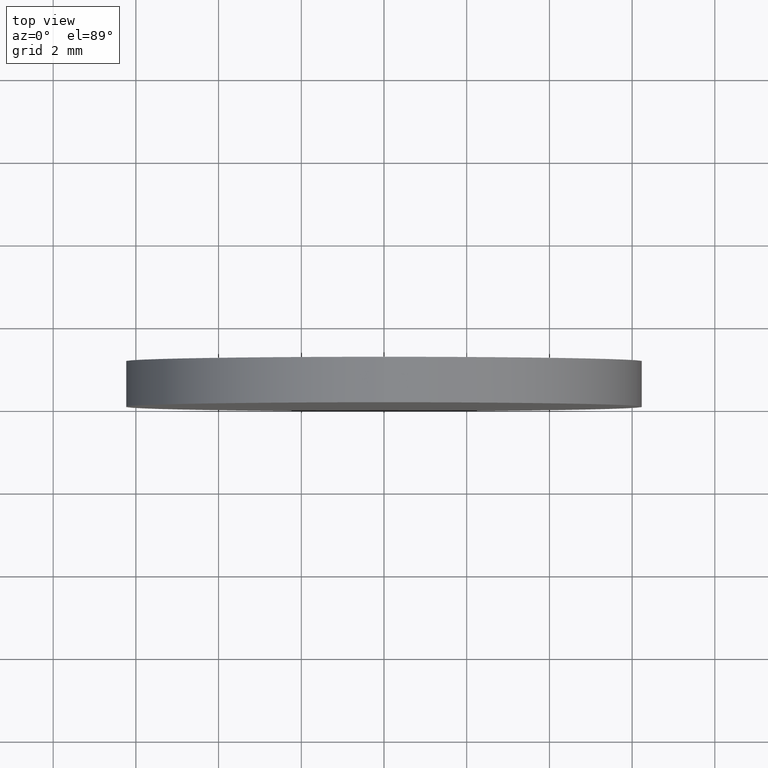
[diagram: clean part render]
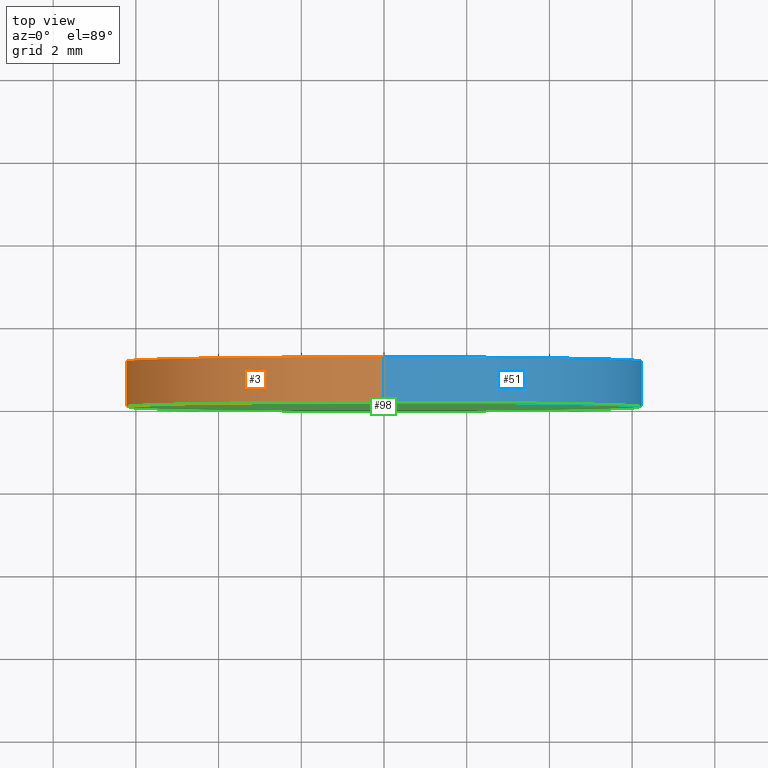
[diagram: same view with three faces highlighted in distinct colors, each labeled with its STEP entity id]
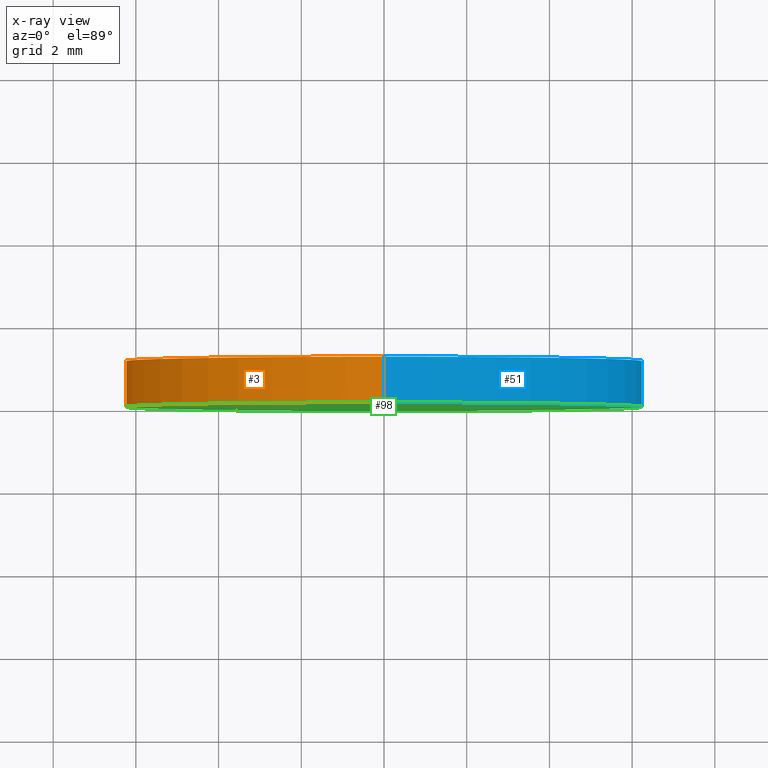
[diagram: x-ray of the same camera — body ghosted, the three highlighted faces saturated]
A machine part, top view with three faces highlighted in distinct colors.
The next image is the same camera in x-ray (body ghosted, the three faces saturated) — at least one of them is partly hidden behind the body in this view.
Their STEP definitions:

[orange] entity #3 — the highlighted cylindrical surface (partial cylindrical patch) has radius 6.25 mm, axis along (-0, -1, -0).
#2 = CIRCLE ( 'NONE', #123, 6.250000000000000000 ) ;
#3 = ADVANCED_FACE ( 'NONE', ( #134 ), #137, .T. ) ;
#8 = CARTESIAN_POINT ( 'NONE',  ( 0.0000000000000000000, 0.0000000000000000000, 0.0000000000000000000 ) ) ;
#9 = ORIENTED_EDGE ( 'NONE', *, *, #71, .F. ) ;
#10 = ORIENTED_EDGE ( 'NONE', *, *, #95, .T. ) ;
#13 = CARTESIAN_POINT ( 'NONE',  ( 0.0000000000000000000, 1.100000000000000100, 0.0000000000000000000 ) ) ;
#15 = CARTESIAN_POINT ( 'NONE',  ( 7.654042494670957600E-016, 0.0000000000000000000, 6.250000000000000000 ) ) ;
#21 = AXIS2_PLACEMENT_3D ( 'NONE', #13, #128, #139 ) ;
#22 = EDGE_LOOP ( 'NONE', ( #121, #9, #37, #10 ) ) ;
#32 = CARTESIAN_POINT ( 'NONE',  ( 0.0000000000000000000, 0.0000000000000000000, -6.250000000000000000 ) ) ;
#34 = CARTESIAN_POINT ( 'NONE',  ( 0.0000000000000000000, 1.100000000000000100, -6.250000000000000000 ) ) ;
#36 = LINE ( 'NONE', #109, #64 ) ;
#37 = ORIENTED_EDGE ( 'NONE', *, *, #74, .T. ) ;
#40 = AXIS2_PLACEMENT_3D ( 'NONE', #8, #140, #93 ) ;
#44 = DIRECTION ( 'NONE',  ( 0.0000000000000000000, 1.000000000000000000, 0.0000000000000000000 ) ) ;
#54 = DIRECTION ( 'NONE',  ( -0.0000000000000000000, -1.000000000000000000, -0.0000000000000000000 ) ) ;
#64 = VECTOR ( 'NONE', #120, 1000.000000000000000 ) ;
#69 = CARTESIAN_POINT ( 'NONE',  ( 7.654042494670957600E-016, 1.100000000000000100, 6.250000000000000000 ) ) ;
#71 = EDGE_CURVE ( 'NONE', #104, #84, #2, .T. ) ;
#74 = EDGE_CURVE ( 'NONE', #104, #82, #125, .T. ) ;
#82 = VERTEX_POINT ( 'NONE', #32 ) ;
#84 = VERTEX_POINT ( 'NONE', #69 ) ;
#85 = VECTOR ( 'NONE', #54, 1000.000000000000000 ) ;
#90 = DIRECTION ( 'NONE',  ( 0.0000000000000000000, 0.0000000000000000000, 1.000000000000000000 ) ) ;
#93 = DIRECTION ( 'NONE',  ( 0.0000000000000000000, 0.0000000000000000000, 1.000000000000000000 ) ) ;
#95 = EDGE_CURVE ( 'NONE', #82, #106, #97, .T. ) ;
#97 = CIRCLE ( 'NONE', #40, 6.250000000000000000 ) ;
#99 = EDGE_CURVE ( 'NONE', #84, #106, #36, .T. ) ;
#104 = VERTEX_POINT ( 'NONE', #34 ) ;
#105 = CARTESIAN_POINT ( 'NONE',  ( 0.0000000000000000000, 1.100000000000000100, 0.0000000000000000000 ) ) ;
#106 = VERTEX_POINT ( 'NONE', #15 ) ;
#109 = CARTESIAN_POINT ( 'NONE',  ( 7.654042494670957600E-016, 1.100000000000000100, 6.250000000000000000 ) ) ;
#118 = CARTESIAN_POINT ( 'NONE',  ( 0.0000000000000000000, 1.100000000000000100, -6.250000000000000000 ) ) ;
#120 = DIRECTION ( 'NONE',  ( -0.0000000000000000000, -1.000000000000000000, -0.0000000000000000000 ) ) ;
#121 = ORIENTED_EDGE ( 'NONE', *, *, #99, .F. ) ;
#123 = AXIS2_PLACEMENT_3D ( 'NONE', #105, #44, #90 ) ;
#125 = LINE ( 'NONE', #118, #85 ) ;
#128 = DIRECTION ( 'NONE',  ( -0.0000000000000000000, -1.000000000000000000, -0.0000000000000000000 ) ) ;
#134 = FACE_OUTER_BOUND ( 'NONE', #22, .T. ) ;
#137 = CYLINDRICAL_SURFACE ( 'NONE', #21, 6.250000000000000000 ) ;
#139 = DIRECTION ( 'NONE',  ( 0.0000000000000000000, 0.0000000000000000000, -1.000000000000000000 ) ) ;
#140 = DIRECTION ( 'NONE',  ( 0.0000000000000000000, 1.000000000000000000, 0.0000000000000000000 ) ) ;

[blue] entity #51 — the highlighted cylindrical surface (partial cylindrical patch) has radius 6.25 mm, axis along (-0, -1, -0).
#11 = CIRCLE ( 'NONE', #108, 6.250000000000000000 ) ;
#15 = CARTESIAN_POINT ( 'NONE',  ( 7.654042494670957600E-016, 0.0000000000000000000, 6.250000000000000000 ) ) ;
#18 = DIRECTION ( 'NONE',  ( -0.0000000000000000000, -1.000000000000000000, -0.0000000000000000000 ) ) ;
#19 = CARTESIAN_POINT ( 'NONE',  ( 0.0000000000000000000, 1.100000000000000100, 0.0000000000000000000 ) ) ;
#20 = DIRECTION ( 'NONE',  ( 0.0000000000000000000, 0.0000000000000000000, 1.000000000000000000 ) ) ;
#29 = CARTESIAN_POINT ( 'NONE',  ( 0.0000000000000000000, 0.0000000000000000000, 0.0000000000000000000 ) ) ;
#30 = ORIENTED_EDGE ( 'NONE', *, *, #83, .T. ) ;
#32 = CARTESIAN_POINT ( 'NONE',  ( 0.0000000000000000000, 0.0000000000000000000, -6.250000000000000000 ) ) ;
#34 = CARTESIAN_POINT ( 'NONE',  ( 0.0000000000000000000, 1.100000000000000100, -6.250000000000000000 ) ) ;
#36 = LINE ( 'NONE', #109, #64 ) ;
#39 = CYLINDRICAL_SURFACE ( 'NONE', #86, 6.250000000000000000 ) ;
#51 = ADVANCED_FACE ( 'NONE', ( #89 ), #39, .T. ) ;
#54 = DIRECTION ( 'NONE',  ( -0.0000000000000000000, -1.000000000000000000, -0.0000000000000000000 ) ) ;
#55 = EDGE_LOOP ( 'NONE', ( #133, #73, #30, #62 ) ) ;
#56 = CIRCLE ( 'NONE', #78, 6.250000000000000000 ) ;
#58 = DIRECTION ( 'NONE',  ( 0.0000000000000000000, 0.0000000000000000000, -1.000000000000000000 ) ) ;
#62 = ORIENTED_EDGE ( 'NONE', *, *, #74, .F. ) ;
#64 = VECTOR ( 'NONE', #120, 1000.000000000000000 ) ;
#69 = CARTESIAN_POINT ( 'NONE',  ( 7.654042494670957600E-016, 1.100000000000000100, 6.250000000000000000 ) ) ;
#70 = CARTESIAN_POINT ( 'NONE',  ( 0.0000000000000000000, 1.100000000000000100, 0.0000000000000000000 ) ) ;
#73 = ORIENTED_EDGE ( 'NONE', *, *, #99, .T. ) ;
#74 = EDGE_CURVE ( 'NONE', #104, #82, #125, .T. ) ;
#78 = AXIS2_PLACEMENT_3D ( 'NONE', #29, #115, #116 ) ;
#82 = VERTEX_POINT ( 'NONE', #32 ) ;
#83 = EDGE_CURVE ( 'NONE', #106, #82, #56, .T. ) ;
#84 = VERTEX_POINT ( 'NONE', #69 ) ;
#85 = VECTOR ( 'NONE', #54, 1000.000000000000000 ) ;
#86 = AXIS2_PLACEMENT_3D ( 'NONE', #19, #18, #58 ) ;
#89 = FACE_OUTER_BOUND ( 'NONE', #55, .T. ) ;
#94 = EDGE_CURVE ( 'NONE', #84, #104, #11, .T. ) ;
#99 = EDGE_CURVE ( 'NONE', #84, #106, #36, .T. ) ;
#104 = VERTEX_POINT ( 'NONE', #34 ) ;
#106 = VERTEX_POINT ( 'NONE', #15 ) ;
#108 = AXIS2_PLACEMENT_3D ( 'NONE', #70, #129, #20 ) ;
#109 = CARTESIAN_POINT ( 'NONE',  ( 7.654042494670957600E-016, 1.100000000000000100, 6.250000000000000000 ) ) ;
#115 = DIRECTION ( 'NONE',  ( 0.0000000000000000000, 1.000000000000000000, 0.0000000000000000000 ) ) ;
#116 = DIRECTION ( 'NONE',  ( 0.0000000000000000000, 0.0000000000000000000, 1.000000000000000000 ) ) ;
#118 = CARTESIAN_POINT ( 'NONE',  ( 0.0000000000000000000, 1.100000000000000100, -6.250000000000000000 ) ) ;
#120 = DIRECTION ( 'NONE',  ( -0.0000000000000000000, -1.000000000000000000, -0.0000000000000000000 ) ) ;
#125 = LINE ( 'NONE', #118, #85 ) ;
#129 = DIRECTION ( 'NONE',  ( 0.0000000000000000000, 1.000000000000000000, 0.0000000000000000000 ) ) ;
#133 = ORIENTED_EDGE ( 'NONE', *, *, #94, .F. ) ;

[green] entity #98 — the highlighted planar face has unit normal (0, 1, 0).
#6 = ORIENTED_EDGE ( 'NONE', *, *, #95, .F. ) ;
#8 = CARTESIAN_POINT ( 'NONE',  ( 0.0000000000000000000, 0.0000000000000000000, 0.0000000000000000000 ) ) ;
#14 = PLANE ( 'NONE',  #16 ) ;
#15 = CARTESIAN_POINT ( 'NONE',  ( 7.654042494670957600E-016, 0.0000000000000000000, 6.250000000000000000 ) ) ;
#16 = AXIS2_PLACEMENT_3D ( 'NONE', #103, #80, #63 ) ;
#29 = CARTESIAN_POINT ( 'NONE',  ( 0.0000000000000000000, 0.0000000000000000000, 0.0000000000000000000 ) ) ;
#32 = CARTESIAN_POINT ( 'NONE',  ( 0.0000000000000000000, 0.0000000000000000000, -6.250000000000000000 ) ) ;
#40 = AXIS2_PLACEMENT_3D ( 'NONE', #8, #140, #93 ) ;
#53 = EDGE_LOOP ( 'NONE', ( #6, #59 ) ) ;
#56 = CIRCLE ( 'NONE', #78, 6.250000000000000000 ) ;
#59 = ORIENTED_EDGE ( 'NONE', *, *, #83, .F. ) ;
#63 = DIRECTION ( 'NONE',  ( 0.0000000000000000000, -0.0000000000000000000, 1.000000000000000000 ) ) ;
#78 = AXIS2_PLACEMENT_3D ( 'NONE', #29, #115, #116 ) ;
#80 = DIRECTION ( 'NONE',  ( 0.0000000000000000000, 1.000000000000000000, 0.0000000000000000000 ) ) ;
#82 = VERTEX_POINT ( 'NONE', #32 ) ;
#83 = EDGE_CURVE ( 'NONE', #106, #82, #56, .T. ) ;
#93 = DIRECTION ( 'NONE',  ( 0.0000000000000000000, 0.0000000000000000000, 1.000000000000000000 ) ) ;
#95 = EDGE_CURVE ( 'NONE', #82, #106, #97, .T. ) ;
#97 = CIRCLE ( 'NONE', #40, 6.250000000000000000 ) ;
#98 = ADVANCED_FACE ( 'NONE', ( #122 ), #14, .F. ) ;
#103 = CARTESIAN_POINT ( 'NONE',  ( 0.0000000000000000000, 0.0000000000000000000, 0.0000000000000000000 ) ) ;
#106 = VERTEX_POINT ( 'NONE', #15 ) ;
#115 = DIRECTION ( 'NONE',  ( 0.0000000000000000000, 1.000000000000000000, 0.0000000000000000000 ) ) ;
#116 = DIRECTION ( 'NONE',  ( 0.0000000000000000000, 0.0000000000000000000, 1.000000000000000000 ) ) ;
#122 = FACE_OUTER_BOUND ( 'NONE', #53, .T. ) ;
#140 = DIRECTION ( 'NONE',  ( 0.0000000000000000000, 1.000000000000000000, 0.0000000000000000000 ) ) ;